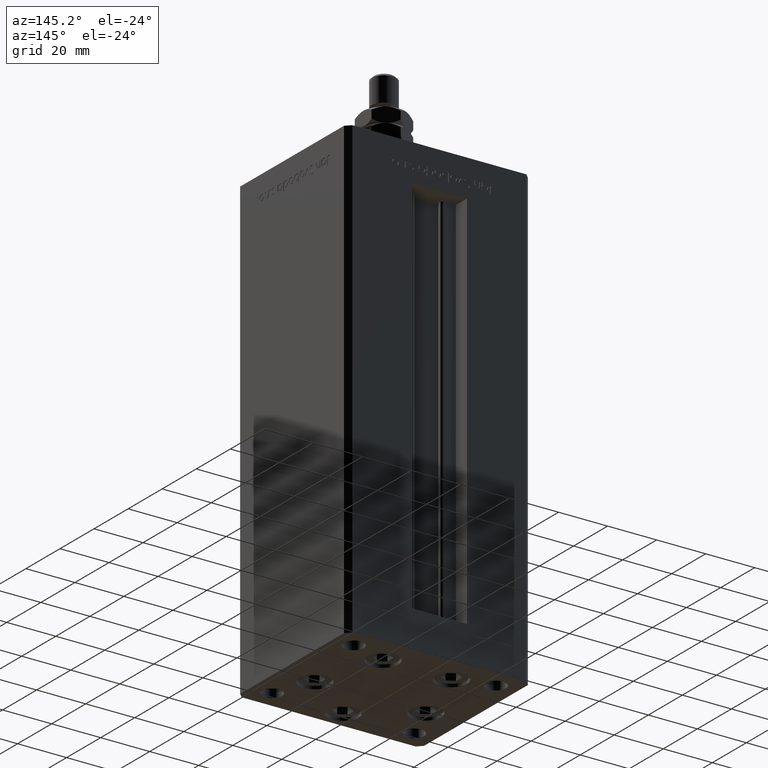
[diagram: clean part render]
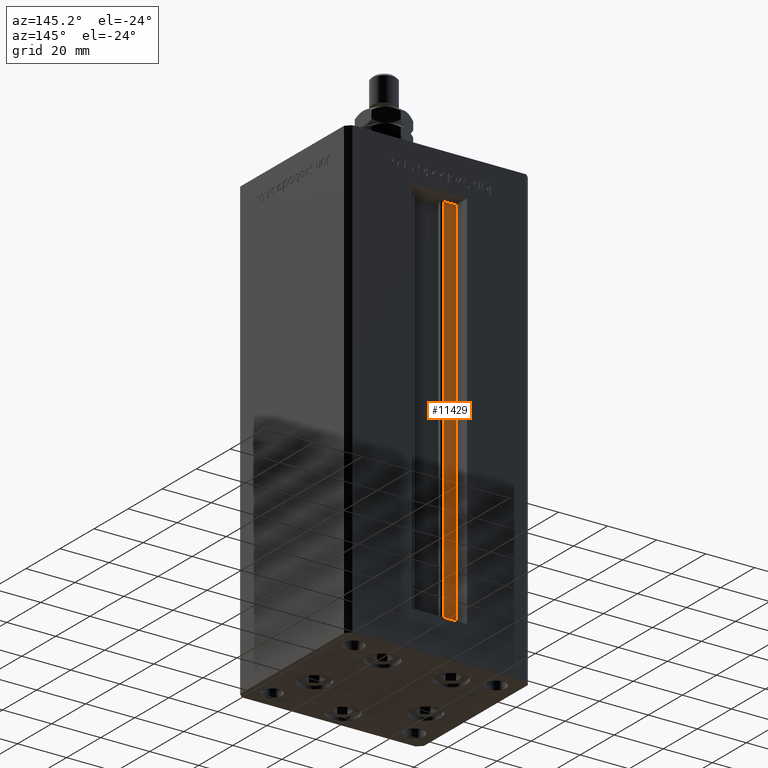
[diagram: same view with one face highlighted and labeled with its STEP entity id]
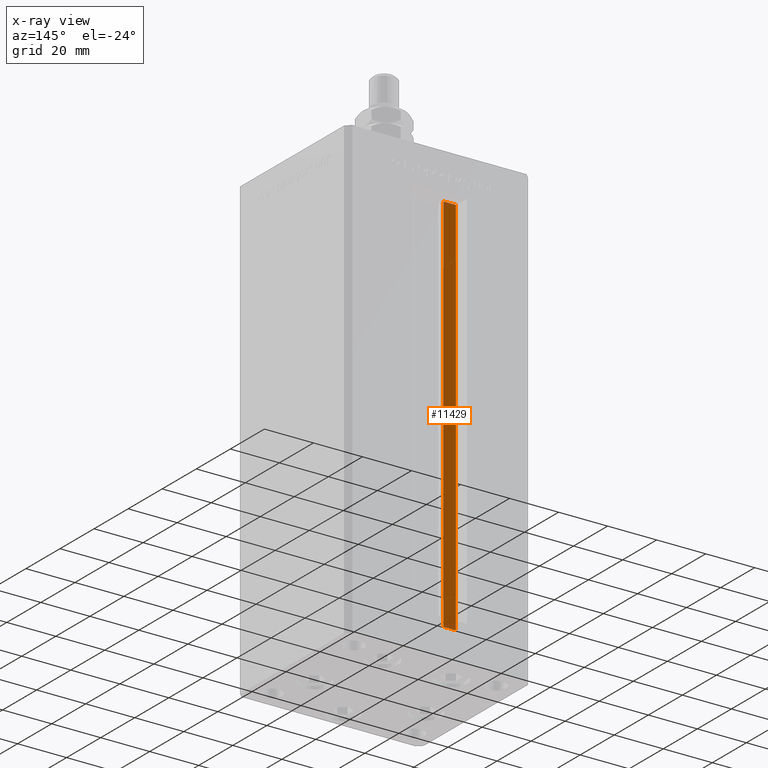
[diagram: x-ray of the same camera — body ghosted, the highlighted face saturated]
A machine part, auxiliary view. The second image highlights one B-rep face of the part: STEP entity #11429.
The next image is the same camera in x-ray: the body ghosted, the highlighted face saturated — about 0% of this face is hidden behind the body in this view.
In plain terms, the highlighted planar face has unit normal (0, -1, 0).
Its self-contained STEP definition (entity closure, byte-faithful):
#323 = VERTEX_POINT ( 'NONE', #48966 ) ;
#1846 = CARTESIAN_POINT ( 'NONE',  ( -6.183333333334001480, 25.99999999999999289, 0.000000000000000000 ) ) ;
#2177 = VECTOR ( 'NONE', #44993, 1000.000000000000000 ) ;
#3518 = ORIENTED_EDGE ( 'NONE', *, *, #28473, .T. ) ;
#5788 = VECTOR ( 'NONE', #18462, 1000.000000000000000 ) ;
#5970 = CARTESIAN_POINT ( 'NONE',  ( -6.183333333334001480, 25.99999999999999289, 156.0000000000000000 ) ) ;
#7109 = CARTESIAN_POINT ( 'NONE',  ( -6.183333333334001480, 25.99999999999999289, 0.000000000000000000 ) ) ;
#9024 = VERTEX_POINT ( 'NONE', #7109 ) ;
#9952 = FACE_OUTER_BOUND ( 'NONE', #46493, .T. ) ;
#11429 = ADVANCED_FACE ( 'NONE', ( #9952 ), #14026, .F. ) ;
#11698 = EDGE_CURVE ( 'NONE', #323, #9024, #49318, .T. ) ;
#14026 = PLANE ( 'NONE',  #35703 ) ;
#14123 = LINE ( 'NONE', #38595, #42085 ) ;
#18165 = ORIENTED_EDGE ( 'NONE', *, *, #11698, .F. ) ;
#18388 = ORIENTED_EDGE ( 'NONE', *, *, #23093, .F. ) ;
#18462 = DIRECTION ( 'NONE',  ( -0.000000000000000000, -0.000000000000000000, 1.000000000000000000 ) ) ;
#18756 = DIRECTION ( 'NONE',  ( -1.000000000000000000, 0.000000000000000000, 0.000000000000000000 ) ) ;
#20689 = VERTEX_POINT ( 'NONE', #5970 ) ;
#23093 = EDGE_CURVE ( 'NONE', #20689, #33629, #14123, .T. ) ;
#26257 = DIRECTION ( 'NONE',  ( 0.000000000000000000, 0.000000000000000000, -1.000000000000000000 ) ) ;
#28473 = EDGE_CURVE ( 'NONE', #323, #33629, #41718, .T. ) ;
#28692 = CARTESIAN_POINT ( 'NONE',  ( -11.25000000000000178, 25.99999999999999289, 0.000000000000000000 ) ) ;
#30605 = CARTESIAN_POINT ( 'NONE',  ( -6.183333333334001480, 25.99999999999999289, 0.000000000000000000 ) ) ;
#33016 = EDGE_CURVE ( 'NONE', #9024, #20689, #35304, .T. ) ;
#33629 = VERTEX_POINT ( 'NONE', #49986 ) ;
#34419 = DIRECTION ( 'NONE',  ( 0.000000000000000000, -1.000000000000000000, -0.000000000000000000 ) ) ;
#35304 = LINE ( 'NONE', #1846, #5788 ) ;
#35703 = AXIS2_PLACEMENT_3D ( 'NONE', #30605, #34419, #26257 ) ;
#36842 = CARTESIAN_POINT ( 'NONE',  ( -6.183333333334001480, 25.99999999999999289, 0.000000000000000000 ) ) ;
#38595 = CARTESIAN_POINT ( 'NONE',  ( 0.000000000000000000, 25.99999999999999289, 156.0000000000000000 ) ) ;
#38685 = ORIENTED_EDGE ( 'NONE', *, *, #33016, .F. ) ;
#39151 = VECTOR ( 'NONE', #45778, 1000.000000000000000 ) ;
#41718 = LINE ( 'NONE', #28692, #2177 ) ;
#42085 = VECTOR ( 'NONE', #18756, 1000.000000000000000 ) ;
#44993 = DIRECTION ( 'NONE',  ( -0.000000000000000000, -0.000000000000000000, 1.000000000000000000 ) ) ;
#45778 = DIRECTION ( 'NONE',  ( 1.000000000000000000, -0.000000000000000000, -0.000000000000000000 ) ) ;
#46493 = EDGE_LOOP ( 'NONE', ( #38685, #18165, #3518, #18388 ) ) ;
#48966 = CARTESIAN_POINT ( 'NONE',  ( -11.25000000000000178, 25.99999999999999289, 0.000000000000000000 ) ) ;
#49318 = LINE ( 'NONE', #36842, #39151 ) ;
#49986 = CARTESIAN_POINT ( 'NONE',  ( -11.25000000000000178, 25.99999999999999289, 156.0000000000000000 ) ) ;